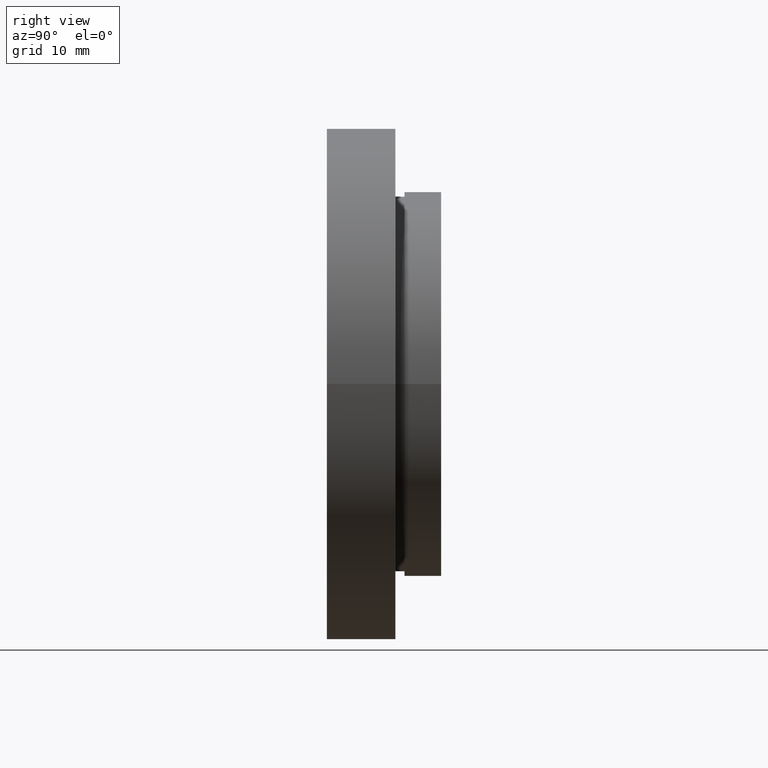
[diagram: clean part render]
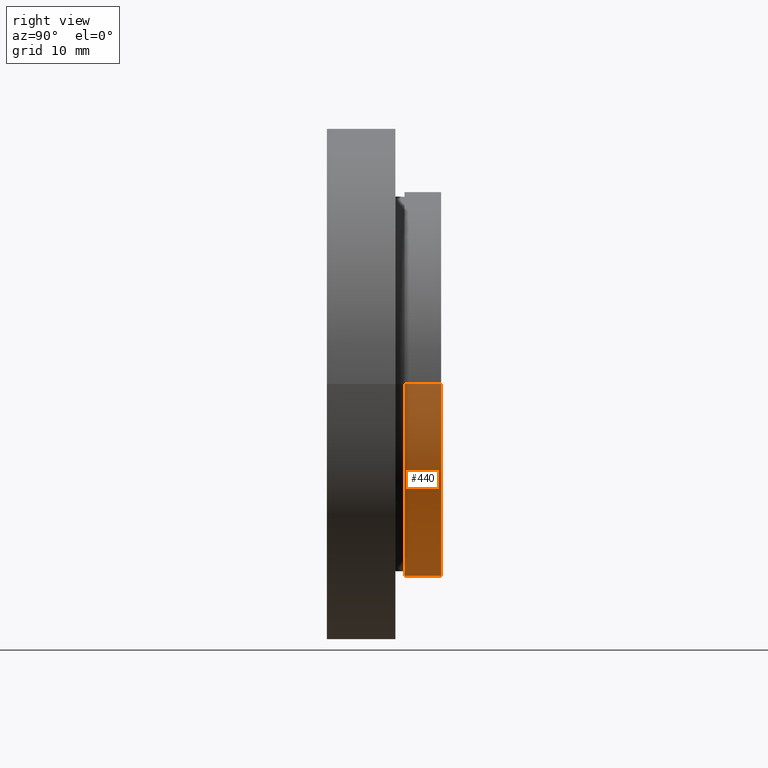
[diagram: same view with one face highlighted and labeled with its STEP entity id]
A machine part, right view. The second image highlights one B-rep face of the part: STEP entity #440.
In plain terms, the highlighted cylindrical surface (partial cylindrical patch) has radius 21.01 mm, axis along (-0, 1, -0).
Its self-contained STEP definition (entity closure, byte-faithful):
#3 = VECTOR ( 'NONE', #95, 1000.000000000000000 ) ;
#21 = LINE ( 'NONE', #41, #3 ) ;
#25 = CIRCLE ( 'NONE', #399, 21.01000000000000200 ) ;
#31 = EDGE_CURVE ( 'NONE', #565, #553, #21, .T. ) ;
#41 = CARTESIAN_POINT ( 'NONE',  ( 21.01000000000000200, 16.88601823708208000, 2.572982925008589200E-015 ) ) ;
#42 = CARTESIAN_POINT ( 'NONE',  ( 21.01000000000000200, 8.500000000000000000, 2.572982925008589200E-015 ) ) ;
#52 = EDGE_LOOP ( 'NONE', ( #290, #350, #424, #533 ) ) ;
#72 = VERTEX_POINT ( 'NONE', #532 ) ;
#90 = DIRECTION ( 'NONE',  ( -1.000000000000000000, -1.651331247955075700E-016, 0.0000000000000000000 ) ) ;
#95 = DIRECTION ( 'NONE',  ( -1.224646799147351000E-016, 1.000000000000000000, -0.0000000000000000000 ) ) ;
#98 = FACE_OUTER_BOUND ( 'NONE', #52, .T. ) ;
#117 = AXIS2_PLACEMENT_3D ( 'NONE', #416, #204, #528 ) ;
#143 = CIRCLE ( 'NONE', #117, 21.01000000000000200 ) ;
#160 = DIRECTION ( 'NONE',  ( -1.224646799147351000E-016, 1.000000000000000000, -0.0000000000000000000 ) ) ;
#162 = VERTEX_POINT ( 'NONE', #429 ) ;
#204 = DIRECTION ( 'NONE',  ( -1.224646799147351000E-016, 1.000000000000000000, -0.0000000000000000000 ) ) ;
#245 = CARTESIAN_POINT ( 'NONE',  ( -21.01000000000000200, 16.88601823708207300, 0.0000000000000000000 ) ) ;
#266 = DIRECTION ( 'NONE',  ( -1.000000000000000000, -8.256656239775378400E-017, 0.0000000000000000000 ) ) ;
#290 = ORIENTED_EDGE ( 'NONE', *, *, #31, .F. ) ;
#327 = CARTESIAN_POINT ( 'NONE',  ( 0.0000000000000000000, 16.88601823708207700, 0.0000000000000000000 ) ) ;
#330 = AXIS2_PLACEMENT_3D ( 'NONE', #327, #523, #90 ) ;
#342 = EDGE_CURVE ( 'NONE', #553, #162, #25, .T. ) ;
#350 = ORIENTED_EDGE ( 'NONE', *, *, #507, .T. ) ;
#399 = AXIS2_PLACEMENT_3D ( 'NONE', #540, #588, #266 ) ;
#416 = CARTESIAN_POINT ( 'NONE',  ( 1.026991039163387700E-015, 8.499999999999998200, 0.0000000000000000000 ) ) ;
#424 = ORIENTED_EDGE ( 'NONE', *, *, #589, .T. ) ;
#429 = CARTESIAN_POINT ( 'NONE',  ( -21.01000000000000200, 12.49999999999999500, 0.0000000000000000000 ) ) ;
#440 = ADVANCED_FACE ( 'NONE', ( #98 ), #515, .T. ) ;
#507 = EDGE_CURVE ( 'NONE', #565, #72, #143, .T. ) ;
#515 = CYLINDRICAL_SURFACE ( 'NONE', #330, 21.01000000000000200 ) ;
#522 = VECTOR ( 'NONE', #160, 1000.000000000000000 ) ;
#523 = DIRECTION ( 'NONE',  ( -1.224646799147351000E-016, 1.000000000000000000, -0.0000000000000000000 ) ) ;
#528 = DIRECTION ( 'NONE',  ( -1.000000000000000000, -8.256656239775378400E-017, 0.0000000000000000000 ) ) ;
#532 = CARTESIAN_POINT ( 'NONE',  ( -21.01000000000000200, 8.499999999999996400, 0.0000000000000000000 ) ) ;
#533 = ORIENTED_EDGE ( 'NONE', *, *, #342, .F. ) ;
#535 = CARTESIAN_POINT ( 'NONE',  ( 21.01000000000000200, 12.49999999999999800, 2.572982925008589200E-015 ) ) ;
#540 = CARTESIAN_POINT ( 'NONE',  ( 5.371323195044475300E-016, 12.49999999999999600, 0.0000000000000000000 ) ) ;
#553 = VERTEX_POINT ( 'NONE', #535 ) ;
#565 = VERTEX_POINT ( 'NONE', #42 ) ;
#588 = DIRECTION ( 'NONE',  ( -1.224646799147351000E-016, 1.000000000000000000, -0.0000000000000000000 ) ) ;
#589 = EDGE_CURVE ( 'NONE', #72, #162, #609, .T. ) ;
#609 = LINE ( 'NONE', #245, #522 ) ;